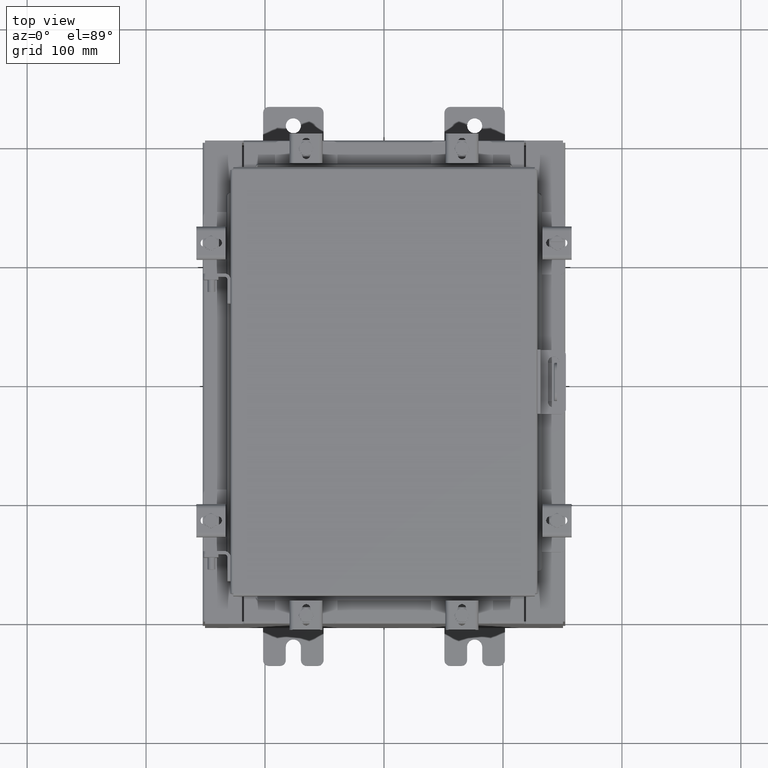
[diagram: clean part render]
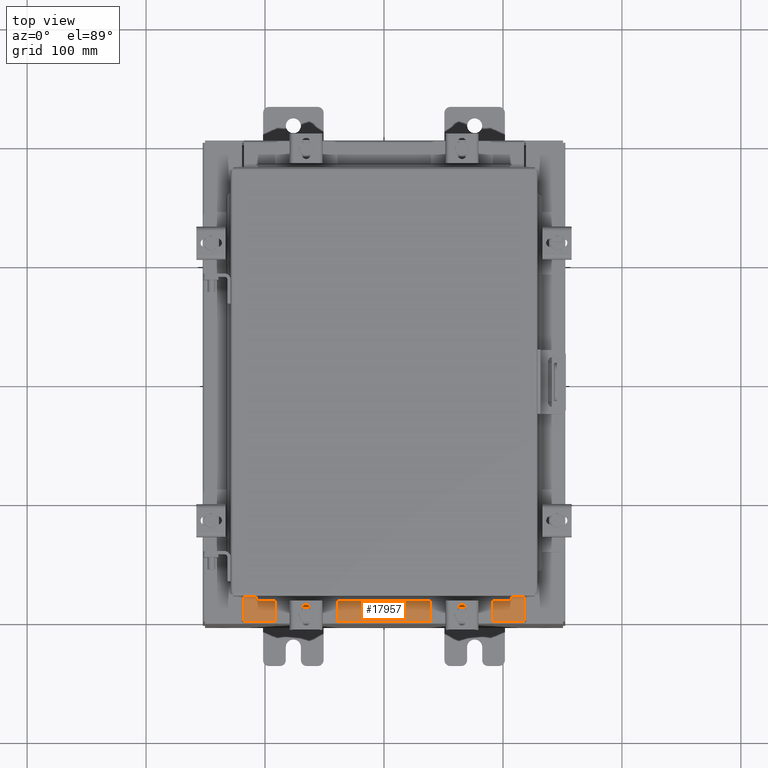
[diagram: same view with one face highlighted and labeled with its STEP entity id]
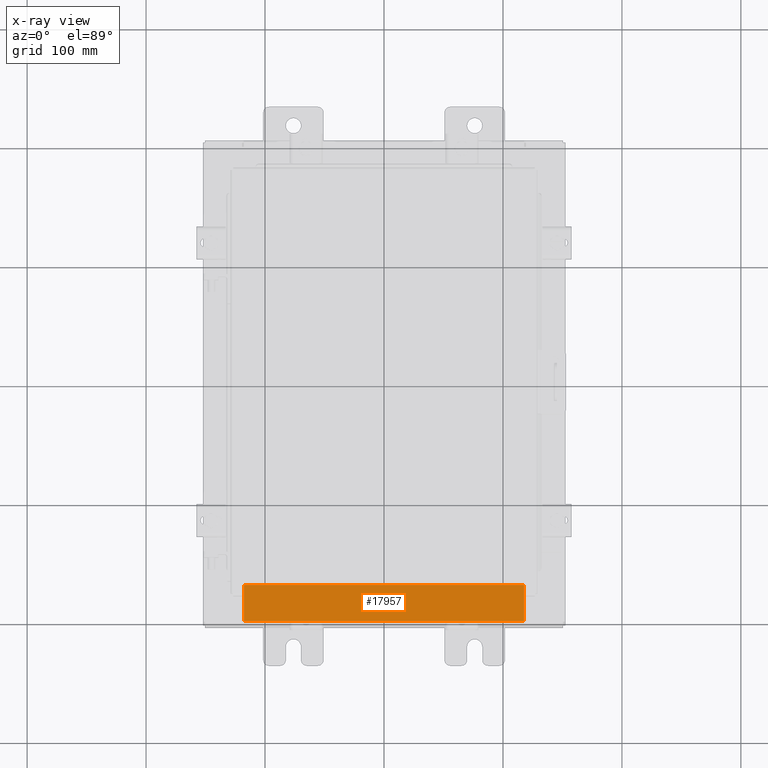
[diagram: x-ray of the same camera — body ghosted, the highlighted face saturated]
A machine part, top view. The second image highlights one B-rep face of the part: STEP entity #17957.
The next image is the same camera in x-ray: the body ghosted, the highlighted face saturated — about 0% of this face is hidden behind the body in this view.
In plain terms, the highlighted planar face has unit normal (-0, -0, 1).
Its self-contained STEP definition (entity closure, byte-faithful):
#251 = DIRECTION ( 'NONE',  ( -1.000000000000000000, 0.0000000000000000000, 0.0000000000000000000 ) ) ;
#492 = VECTOR ( 'NONE', #251, 39.37007874015748100 ) ;
#1092 = LINE ( 'NONE', #12144, #18191 ) ;
#2886 = AXIS2_PLACEMENT_3D ( 'NONE', #16550, #8067, #19920 ) ;
#4258 = DIRECTION ( 'NONE',  ( -0.0000000000000000000, 1.000000000000000000, -3.566381192773190000E-015 ) ) ;
#4470 = EDGE_CURVE ( 'NONE', #9491, #10503, #1092, .T. ) ;
#4732 = DIRECTION ( 'NONE',  ( -1.000000000000000000, 0.0000000000000000000, 0.0000000000000000000 ) ) ;
#5046 = LINE ( 'NONE', #20627, #492 ) ;
#5420 = ORIENTED_EDGE ( 'NONE', *, *, #11743, .F. ) ;
#5990 = CARTESIAN_POINT ( 'NONE',  ( -4.637199999999998200, -0.07469999999999973900, 3.999999999999999600 ) ) ;
#6062 = EDGE_CURVE ( 'NONE', #9491, #19830, #5046, .T. ) ;
#6455 = CARTESIAN_POINT ( 'NONE',  ( 4.637200000000002700, -1.287299999999999900, 4.000000000000003600 ) ) ;
#7975 = CARTESIAN_POINT ( 'NONE',  ( 4.637200000000002700, -1.287299999999999900, 4.000000000000003600 ) ) ;
#8067 = DIRECTION ( 'NONE',  ( 0.0000000000000000000, 3.566381192773190000E-015, 1.000000000000000000 ) ) ;
#8384 = FACE_OUTER_BOUND ( 'NONE', #19968, .T. ) ;
#8531 = CARTESIAN_POINT ( 'NONE',  ( 4.637200000000002700, -0.08769999999999993100, 3.999999999999999600 ) ) ;
#8994 = LINE ( 'NONE', #5990, #12468 ) ;
#9038 = VECTOR ( 'NONE', #4732, 39.37007874015748100 ) ;
#9491 = VERTEX_POINT ( 'NONE', #8531 ) ;
#9585 = LINE ( 'NONE', #6455, #9038 ) ;
#10503 = VERTEX_POINT ( 'NONE', #7975 ) ;
#10592 = EDGE_CURVE ( 'NONE', #10503, #19812, #9585, .T. ) ;
#11383 = ORIENTED_EDGE ( 'NONE', *, *, #4470, .F. ) ;
#11743 = EDGE_CURVE ( 'NONE', #19812, #19830, #8994, .T. ) ;
#12144 = CARTESIAN_POINT ( 'NONE',  ( 4.637200000000002700, -1.300299999999999800, 4.000000000000003600 ) ) ;
#12468 = VECTOR ( 'NONE', #4258, 39.37007874015748100 ) ;
#14217 = CARTESIAN_POINT ( 'NONE',  ( -4.637199999999998200, -0.08770000000000026400, 3.999999999999999600 ) ) ;
#15596 = DIRECTION ( 'NONE',  ( -0.0000000000000000000, -1.000000000000000000, 3.566381192773190000E-015 ) ) ;
#16550 = CARTESIAN_POINT ( 'NONE',  ( 0.0000000000000000000, 1.425992975200418200E-014, 3.999999999999999600 ) ) ;
#17161 = ORIENTED_EDGE ( 'NONE', *, *, #10592, .F. ) ;
#17957 = ADVANCED_FACE ( 'NONE', ( #8384 ), #21560, .T. ) ;
#18191 = VECTOR ( 'NONE', #15596, 39.37007874015748100 ) ;
#19069 = ORIENTED_EDGE ( 'NONE', *, *, #6062, .T. ) ;
#19204 = CARTESIAN_POINT ( 'NONE',  ( -4.637199999999998200, -1.287299999999999200, 4.000000000000003600 ) ) ;
#19812 = VERTEX_POINT ( 'NONE', #19204 ) ;
#19830 = VERTEX_POINT ( 'NONE', #14217 ) ;
#19920 = DIRECTION ( 'NONE',  ( 0.0000000000000000000, -1.000000000000000000, 3.566381192773190000E-015 ) ) ;
#19968 = EDGE_LOOP ( 'NONE', ( #5420, #17161, #11383, #19069 ) ) ;
#20627 = CARTESIAN_POINT ( 'NONE',  ( 0.0000000000000000000, -0.08770000000000026400, 4.000000000000000000 ) ) ;
#21560 = PLANE ( 'NONE',  #2886 ) ;